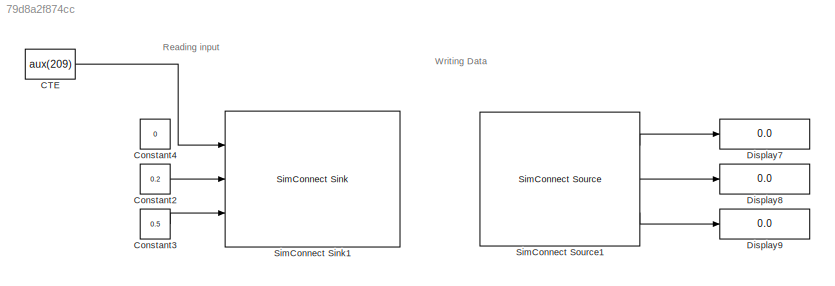
MODEL slx_79d8a2f874cc
KIND model
CONFIG AbsTol = auto
CONFIG EnableMultiTasking = off
CONFIG FixedStep = 0.03
CONFIG MaxStep = auto
CONFIG MinStep = auto
CONFIG RelTol = 1e-3
CONFIG SampleTimeConstraint = Unconstrained
CONFIG SolverName = FixedStepDiscrete
CONFIG StartTime = 0.0
CONFIG StopTime = inf
BLOCK [Constant] CTE
  SampleTime = 0.03
  Value = aux(209)
BLOCK [Constant] Constant2
  SampleTime = 0.03
  Value = 0.2
BLOCK [Constant] Constant3
  SampleTime = 0.03
  Value = 0.5
BLOCK [Constant] Constant4
  SampleTime = 0.03
  Value = 0
BLOCK [Display] Display7
  Decimation = 1
  Ports = [1]
BLOCK [Display] Display8
  Decimation = 1
  Ports = [1]
BLOCK [Display] Display9
  Decimation = 1
  Ports = [1]
BLOCK [Reference] SimConnect Sink1  REF=SimConnectToolbox/SimConnect Sink
  Ports = [3]
  SourceBlock = SimConnectToolbox/SimConnect Sink
  SourceProductName = SimConnect Toolbox
BLOCK [Reference] SimConnect Source1  REF=SimConnectToolbox/SimConnect Source
  Ports = [0, 3]
  SourceBlock = SimConnectToolbox/SimConnect Source
  SourceProductName = SimConnect Toolbox
ANNOTATION (root): Reading input
ANNOTATION (root): Writing Data
LINE CTE:1 -> SimConnect Sink1:1
LINE Constant2:1 -> SimConnect Sink1:2
LINE Constant3:1 -> SimConnect Sink1:3
LINE SimConnect Source1:1 -> Display7:1
LINE SimConnect Source1:2 -> Display8:1
LINE SimConnect Source1:3 -> Display9:1
